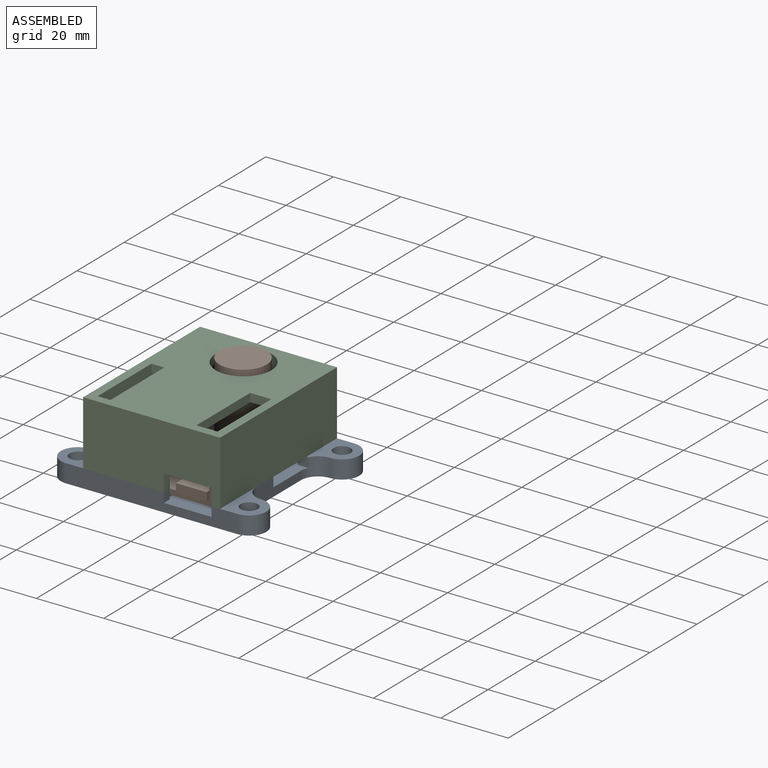
[diagram: assembled view]
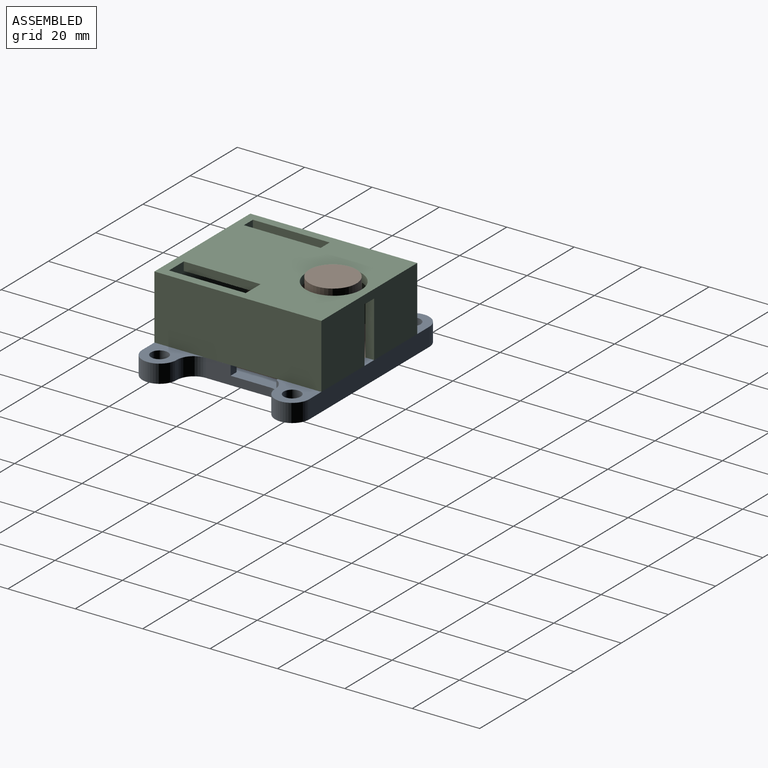
[diagram: assembled view, second angle]
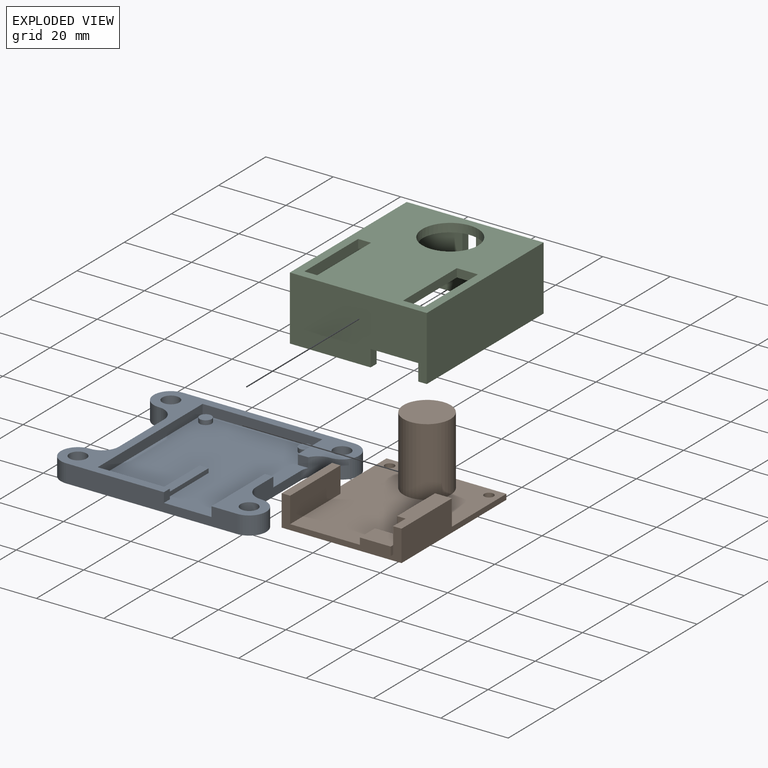
[diagram: exploded view]
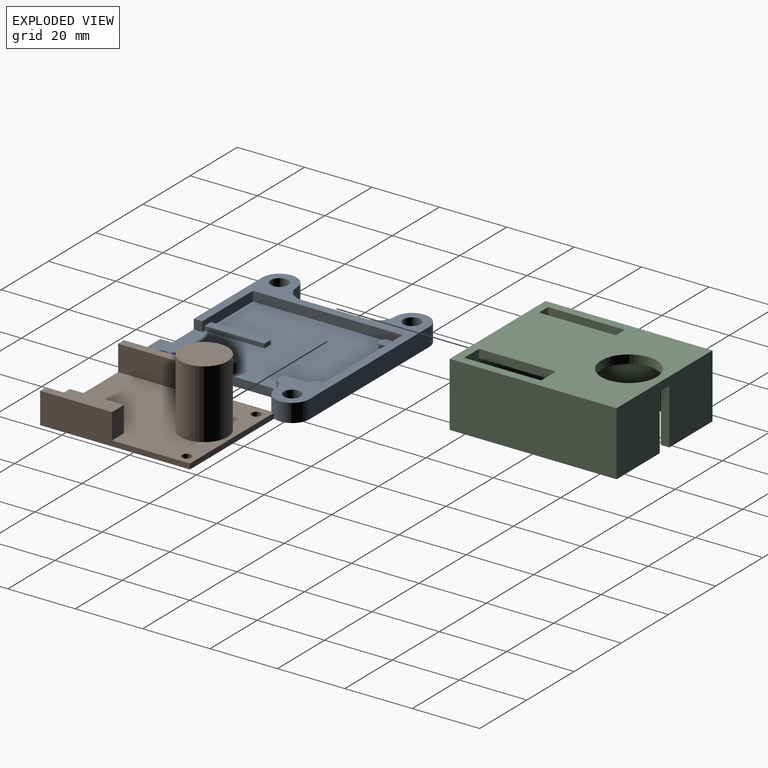
[diagram: exploded view, second angle]
ASSEMBLY  parts=3 mates=6
PART A: 44 faces, bbox 61x49.5x5.4 mm
  f0: plane 19.02x5.41mm, normal (-1,0,0), area 102.9mm2, adj f3,f8,f33,f36
  f1: plane 19.02x5.41mm, normal (1,0,0), area 69.4mm2, adj f5,f8,f12,f22,f39,f42
  f2: plane 21.43x2.87mm, normal (0,1,0), area 58.1mm2, adj f3,f5,f9,f17,f18,f20,f23
  f3: plane 60.96x49.53mm, normal (0,0,1), area 535.8mm2, adj f0,f2,f6,f7,f9,f10,f11,f21
  f4: plane 22.61x2.87mm, normal (-1,0,0), area 64.9mm2, adj f5,f6,f12,f22
  f5: plane 46.99x38.65mm, normal (0,0,1), area 1584.9mm2, adj f1,f2,f4,f6,f9,f10,f11,f13
  f6: plane 50.8x5.41mm, normal (0,-1,0), area 234.3mm2, adj f3,f4,f5,f8,f12,f23,f34,f43
  f7: plane 50.8x5.41mm, normal (0,1,0), area 274.8mm2, adj f3,f8,f37,f40
  f8: plane 60.96x49.53mm, normal (0,0,-1), area 2323.3mm2, adj f0,f1,f6,f7,f24,f25,f26,f27
  f9: plane 44.45x2.87mm, normal (1,0,0), area 127.6mm2, adj f2,f3,f5,f10
  f10: plane 35.56x2.87mm, normal (0,-1,0), area 102.1mm2, adj f3,f5,f9,f11
  f11: plane 10.41x2.87mm, normal (-1,0,0), area 29.9mm2, adj f3,f5,f10,f21
  f12: plane 22.61x12.7mm, normal (0,0,1), area 135mm2, adj f1,f4,f6,f22,f24,f28,f41,f42
  f13: cylinder r=1.78mm len=3.57mm, axis (0,0,-1), area 14.2mm2, adj f5,f14
  f14: plane 3.57x3.57mm, normal (0,0,1), area 10mm2, adj f13
  f15: cylinder r=1.78mm len=3.57mm, axis (0,0,-1), area 14.2mm2, adj f5,f16
  f16: plane 3.57x3.57mm, normal (0,0,1), area 10mm2, adj f15
  f17: plane 17.79x1.27mm, normal (-1,0,0), area 22.6mm2, adj f2,f5,f19,f20
  f18: plane 17.79x1.27mm, normal (1,0,0), area 22.6mm2, adj f2,f5,f19,f20
  f19: plane 2.68x1.27mm, normal (0,1,0), area 3.4mm2, adj f5,f17,f18,f20
  f20: plane 17.79x2.68mm, normal (0,0,1), area 47.6mm2, adj f2,f17,f18,f19
  f21: plane 3.09x2.87mm, normal (0,-1,0), area 8.9mm2, adj f3,f5,f11,f39
  f22: plane 2.87x2.54mm, normal (0,1,0), area 7.3mm2, adj f1,f4,f5,f12
  f23: plane 2.87x2.54mm, normal (1,0,0), area 7.3mm2, adj f2,f3,f5,f6
  f24: plane 5.41x0.02mm, normal (1,0,0), area 0.1mm2, adj f8,f12,f41,f43
  f25: plane 5.41x0.02mm, normal (1,0,0), area 0.1mm2, adj f3,f8,f38,f40
  f26: plane 5.41x0.02mm, normal (-1,0,0), area 0.1mm2, adj f3,f8,f35,f37
  f27: plane 5.41x0.02mm, normal (-1,0,0), area 0.1mm2, adj f3,f8,f32,f34
  f28: cylinder r=2.54mm len=5.41mm, axis (0,0,1), area 86.3mm2, adj f8,f12
  f29: cylinder r=2.54mm len=5.41mm, axis (0,0,1), area 86.3mm2, adj f3,f8
  f30: cylinder r=2.54mm len=5.41mm, axis (0,0,1), area 86.3mm2, adj f3,f8
  f31: cylinder r=2.54mm len=5.41mm, axis (0,0,1), area 86.3mm2, adj f3,f8
  f32: cylinder r=5.08mm len=5.41mm, axis (0,0,1), area 43.2mm2, adj f3,f8,f27,f33
  f33: cylinder r=5.08mm len=5.41mm, axis (0,0,-1), area 43.2mm2, adj f0,f3,f8,f32
  f34: cylinder r=5.08mm len=5.41mm, axis (0,0,1), area 43.2mm2, adj f3,f6,f8,f27
  f35: cylinder r=5.08mm len=5.41mm, axis (0,0,-1), area 43.2mm2, adj f3,f8,f26,f36
  f36: cylinder r=5.08mm len=5.41mm, axis (0,0,1), area 43.2mm2, adj f0,f3,f8,f35
  f37: cylinder r=5.08mm len=5.41mm, axis (0,0,-1), area 43.2mm2, adj f3,f7,f8,f26
  f38: cylinder r=5.08mm len=5.41mm, axis (0,0,1), area 43.2mm2, adj f3,f8,f25,f39
  f39: cylinder r=5.08mm len=5.41mm, axis (0,0,1), area 36.3mm2, adj f1,f3,f5,f8,f21,f38
  f40: cylinder r=5.08mm len=5.41mm, axis (0,0,-1), area 43.2mm2, adj f3,f7,f8,f25
  f41: cylinder r=5.08mm len=5.41mm, axis (0,0,-1), area 43.2mm2, adj f8,f12,f24,f42
  f42: cylinder r=5.08mm len=5.41mm, axis (0,0,-1), area 43.2mm2, adj f1,f8,f12,f41
  f43: cylinder r=5.08mm len=5.41mm, axis (0,0,1), area 43.2mm2, adj f6,f8,f12,f24
PART B: 24 faces, bbox 35.6x45.5x21.9 mm
  f0: plane 44.45x35.56mm, normal (0,0,1), area 1219mm2, adj f1,f2,f3,f4,f5,f6,f8,f12
  f1: plane 44.45x9.22mm, normal (-1,0,0), area 233.7mm2, adj f0,f2,f4,f7,f15,f17
  f2: plane 35.56x9.22mm, normal (0,-1,0), area 95mm2, adj f0,f1,f3,f7,f11,f14,f16,f17
  f3: plane 44.45x9.22mm, normal (1,0,0), area 233.7mm2, adj f0,f2,f4,f7,f12,f14
  f4: plane 35.56x1.6mm, normal (0,1,0), area 56.9mm2, adj f0,f1,f3,f7
  f5: cylinder r=1.4mm len=2.79mm, axis (0,0,-1), area 14mm2, adj f0,f7
  f6: cylinder r=1.4mm len=2.79mm, axis (0,0,-1), area 14mm2, adj f0,f7
  f7: plane 44.45x35.56mm, normal (0,0,-1), area 1568.4mm2, adj f1,f2,f3,f4,f5,f6
  f8: cylinder r=7mm len=20.32mm, axis (0,0,-1), area 893.7mm2, adj f0,f9
  f9: plane 14x14mm, normal (0,0,1), area 153.9mm2, adj f8
  f10: plane 5.08x2.5mm, normal (0,-1,0), area 12.7mm2, adj f11,f13,f14,f23
  f11: plane 5.33x5.08mm, normal (-1,0,0), area 27.1mm2, adj f2,f10,f14,f23
  f12: plane 7.62x5mm, normal (0,1,0), area 38.1mm2, adj f0,f3,f13,f14
  f13: plane 16x7.62mm, normal (-1,0,0), area 121.9mm2, adj f0,f10,f12,f14,f18
  f14: plane 21.34x5mm, normal (0,0,1), area 93.3mm2, adj f2,f3,f10,f11,f12,f13
  f15: plane 7.62x2.5mm, normal (0,1,0), area 19mm2, adj f0,f1,f16,f17
  f16: plane 21.34x7.62mm, normal (1,0,0), area 162.6mm2, adj f0,f2,f15,f17
  f17: plane 21.34x2.5mm, normal (0,0,1), area 53.3mm2, adj f1,f2,f15,f16
  f18: plane 6.64x2.54mm, normal (0,1,0), area 16.9mm2, adj f0,f13,f21,f23
  f19: plane 2.54x1.02mm, normal (1,0,0), area 2.6mm2, adj f2,f20,f22,f23
  f20: plane 9.14x1.02mm, normal (0,0,-1), area 9.3mm2, adj f2,f19,f21,f22
  f21: plane 6.35x2.54mm, normal (-1,0,0), area 16.1mm2, adj f0,f18,f20,f22,f23
  f22: plane 9.14x2.54mm, normal (0,-1,0), area 23.2mm2, adj f19,f20,f21,f23
  f23: plane 9.14x6.35mm, normal (0,0,1), area 58.1mm2, adj f10,f11,f18,f19,f21,f22
PART C: 29 faces, bbox 40.6x49.5x19.1 mm
  f0: plane 49.53x23.97mm, normal (0,0,-1), area 220.2mm2, adj f1,f3,f5,f6,f8,f10,f18,f27
  f1: plane 35.56x19.05mm, normal (0,1,0), area 542.9mm2, adj f0,f2,f4,f10,f12,f13,f15,f18
  f2: plane 49.53x40.64mm, normal (0,0,1), area 1568.1mm2, adj f1,f5,f6,f7,f8,f10,f12,f13
  f3: plane 16.51x15.75mm, normal (0,-1,0), area 252.9mm2, adj f0,f4,f10,f25,f27
  f4: plane 44.45x35.56mm, normal (0,0,-1), area 1031.8mm2, adj f1,f3,f10,f11,f12,f13,f14,f15
  f5: plane 49.53x19.05mm, normal (-1,0,0), area 943.5mm2, adj f0,f2,f6,f8
  f6: plane 40.64x19.05mm, normal (0,-1,0), area 704.3mm2, adj f0,f2,f5,f7,f9,f12,f18,f19
  f7: plane 49.53x19.05mm, normal (1,0,0), area 943.5mm2, adj f2,f6,f8,f9
  f8: plane 40.64x19.05mm, normal (0,1,0), area 707mm2, adj f0,f2,f5,f7,f9,f26,f27,f28
  f9: plane 49.53x18.29mm, normal (0,0,-1), area 165.8mm2, adj f6,f7,f8,f11,f12,f28
  f10: plane 44.45x19.05mm, normal (1,0,0), area 784.7mm2, adj f0,f1,f2,f3,f4,f16,f25
  f11: plane 16.51x15.75mm, normal (0,-1,0), area 252.9mm2, adj f4,f9,f12,f24,f28
  f12: plane 46.99x19.05mm, normal (-1,0,0), area 797.2mm2, adj f1,f2,f4,f6,f9,f11,f14,f19
  f13: plane 22.79x2.54mm, normal (1,0,0), area 57.9mm2, adj f1,f2,f4,f14
  f14: plane 6.28x2.54mm, normal (0,-1,0), area 15.9mm2, adj f2,f4,f12,f13
  f15: plane 22.79x2.54mm, normal (-1,0,0), area 57.9mm2, adj f1,f2,f4,f16
  f16: plane 3.81x2.54mm, normal (0,-1,0), area 9.7mm2, adj f2,f4,f10,f15
  f17: cylinder r=8.27mm len=16.54mm, axis (0,0,1), area 132mm2, adj f2,f4,f26
  f18: plane 4.94x2.54mm, normal (1,0,0), area 12.6mm2, adj f0,f1,f6,f19
  f19: plane 14.13x2.54mm, normal (0,0,-1), area 35.9mm2, adj f1,f6,f12,f18
  f20: plane 4.21x4.21mm, normal (0,0,-1), area 13.9mm2, adj f21
  f21: cylinder r=2.11mm len=13.97mm, axis (0,0,1), area 184.9mm2, adj f20,f25
  f22: plane 4.21x4.21mm, normal (0,0,-1), area 13.9mm2, adj f23
  f23: cylinder r=2.11mm len=13.97mm, axis (0,0,1), area 184.9mm2, adj f22,f24
  f24: cone r=2.11mm half-angle=45deg, axis (0,0,1), area 54.4mm2, adj f4,f11,f12,f23
  f25: cone r=2.11mm half-angle=45deg, axis (0,0,1), area 54.4mm2, adj f3,f4,f10,f21
  f26: plane 4.07x2.54mm, normal (0,0,-1), area 9.6mm2, adj f8,f17,f27,f28
  f27: plane 16.51x2.54mm, normal (1,0,0), area 41.9mm2, adj f0,f3,f8,f26
  f28: plane 16.51x2.54mm, normal (-1,0,0), area 41.9mm2, adj f8,f9,f11,f26
PLACE A t=(-5.44,-3.88,2.9)mm
PLACE B t=(-2.9,-1.34,6.71)mm fixed
PLACE C t=(-5.44,-3.88,8.31)mm
MATE planar C.f6 <-> A.f6  axis (0,-1,0) through (13.82,-3.88,18.54)mm
MATE planar B.f1 <-> A.f9  axis (-1,0,0) through (-2.9,12.84,10.72)mm
MATE planar C.f7 <-> A.f1  axis (1,0,0) through (35.2,20.88,17.84)mm
MATE planar A.f3 <-> C.f0  axis (0,0,1) through (7.29,26.36,8.31)mm
MATE planar B.f7 <-> A.f20  axis (0,0,-1) through (14.88,20.73,6.71)mm
MATE planar B.f2 <-> A.f2  axis (0,-1,0) through (14.88,-1.34,9.36)mm
